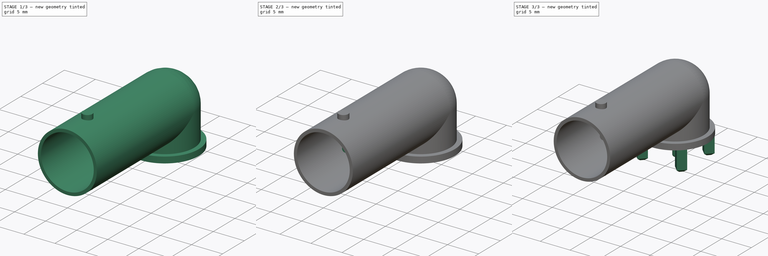
[diagram: build sequence overview — one tinted view per stage of 3, left to right]
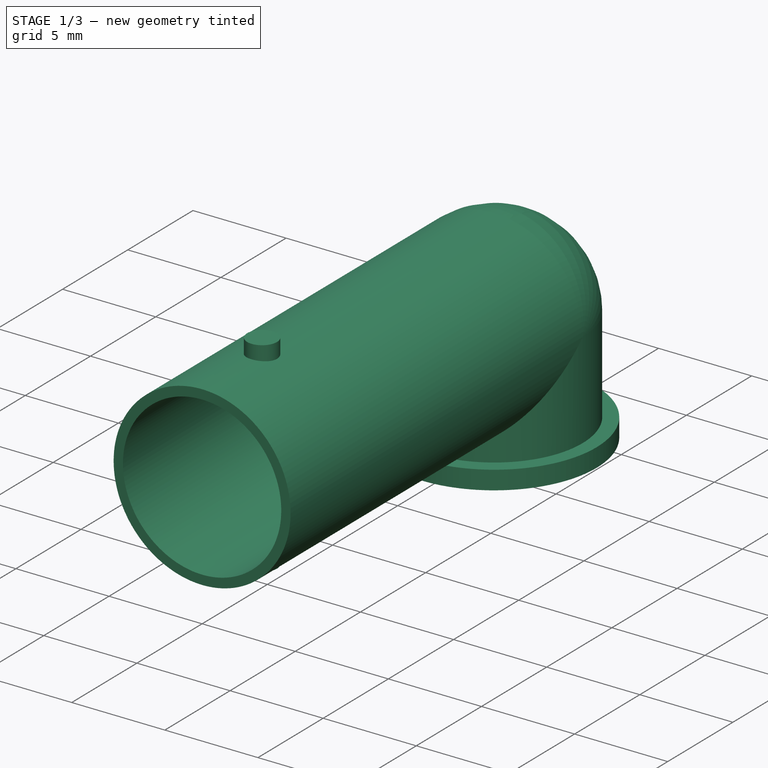
[diagram: stage 1 of 3 — iso view after this stage's code; geometry added in this stage tinted green]
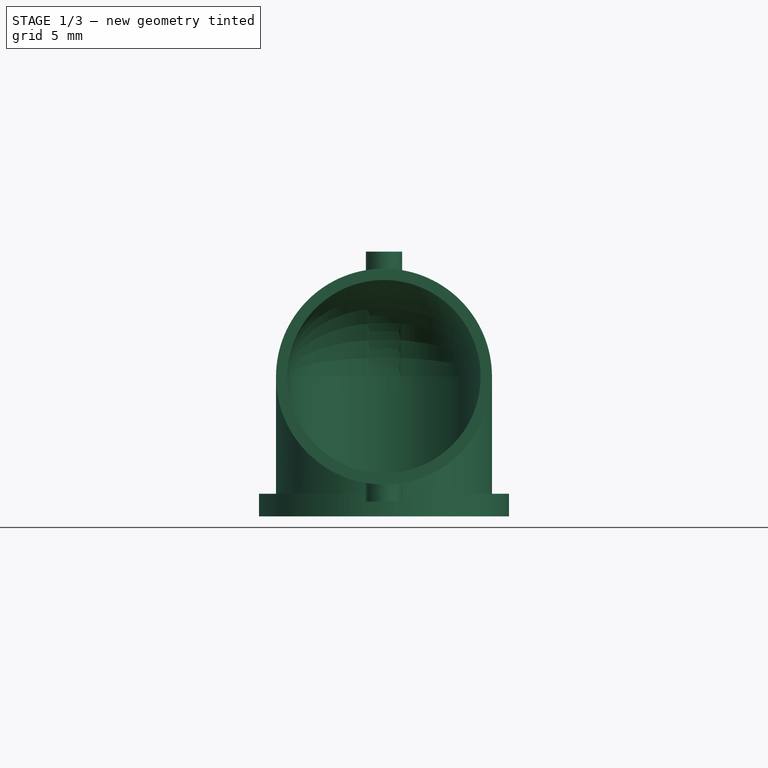
[diagram: stage 1 of 3 — front view after this stage's code; geometry added in this stage tinted green]
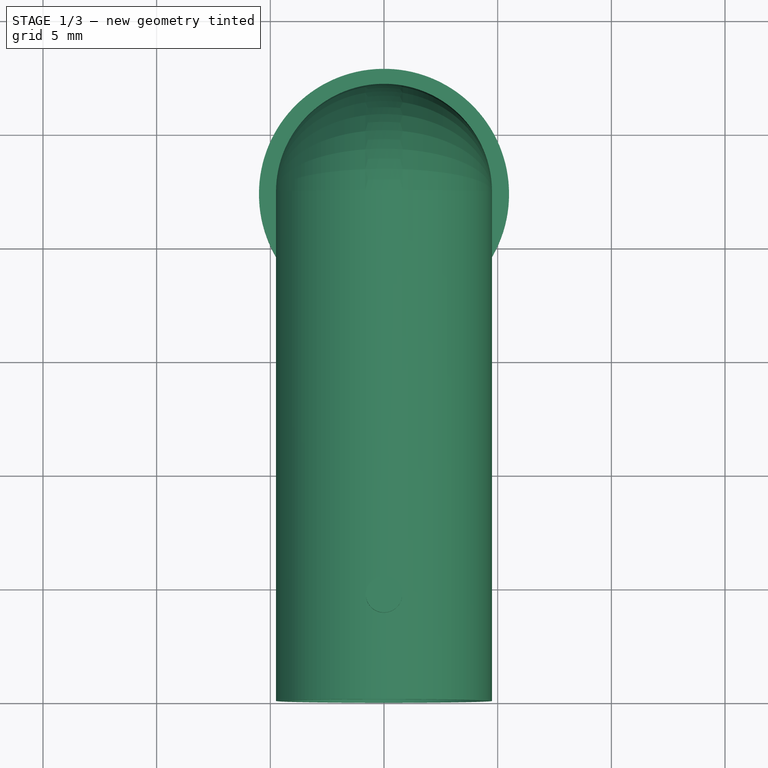
[diagram: stage 1 of 3 — top view after this stage's code; geometry added in this stage tinted green]
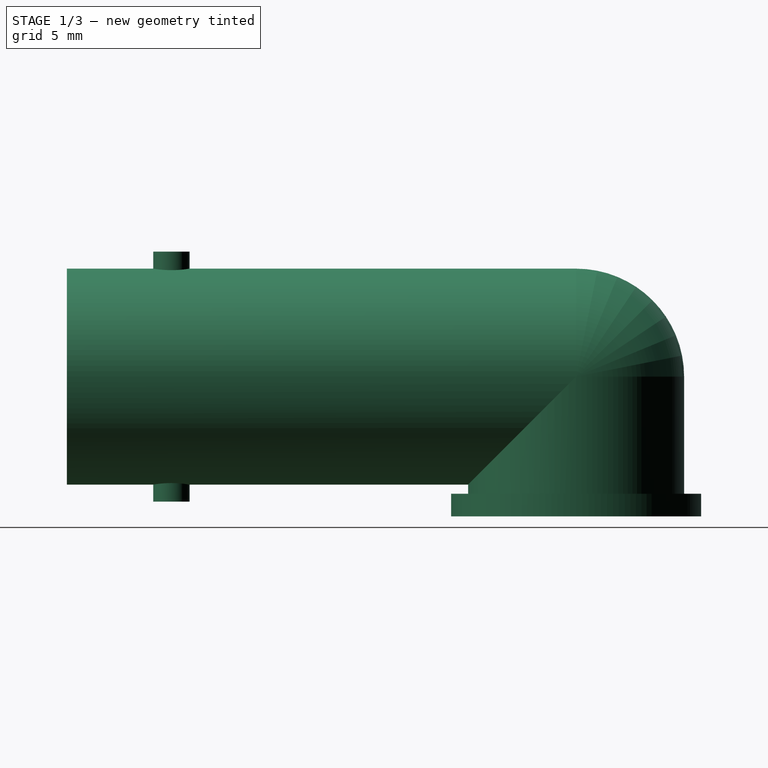
[diagram: stage 1 of 3 — right view after this stage's code; geometry added in this stage tinted green]
FCSTD DOCUMENT  (FreeCAD 1.0R39319 (Git))
Label: DOSIN_801_0051
License: All rights reserved
LicenseURL: https://en.wikipedia.org/wiki/All_rights_reserved
objects: Sketcher::SketchObject×7, PartDesign::Pad×4, PartDesign::Plane×1, PartDesign::AdditivePipe×1, PartDesign::Revolution×1, PartDesign::Fillet×1, PartDesign::Chamfer×1, PartDesign::Body×1, Part::Feature×1
note: 41 computed .brp shape members not serialized (recipe doc carries the construction recipe); baked Part::Feature solids carry a one-line shape summary decoded from their .brp

FEATURE [Sketcher::SketchObject] Sketch
  ArcFitTolerance = 1e-06
  AttachmentSupport = -> [XZ_Plane]
  FullyConstrained = true
  MakeInternals = false
  MapMode = 5
  Placement = pos=(0,0,0) rot=(1,0,0;1.5708rad)
  sketch-geometry (4):
    g0: LineSegment [constr] StartX=0 StartY=0 StartZ=0 EndX=0 EndY=6.15 EndZ=0
    g1: Circle CenterX=0 CenterY=6.15 CenterZ=0 NormalX=0 NormalY=0 NormalZ=1 AngleXU=0 Radius=4.75
    g2: Circle CenterX=0 CenterY=6.15 CenterZ=0 NormalX=0 NormalY=0 NormalZ=1 AngleXU=0 Radius=4.25
    g3: GeomPoint X=0 Y=6.15 Z=0
  constraints (8):
    c: Coincident(g0,g-1)
    c: PointOnObject(g0,g-2)
    c: DistanceY(g0,g0) = 6.15
    c: Diameter(g1) = 9.5
    c: Coincident(g1,g0)
    c: Diameter(g2) = 8.5
    c: Coincident(g2,g1)
    c: Coincident(g3,g0)
FEATURE [PartDesign::Plane] DatumPlane
  AttachmentOffset = pos=(0,0,0) rot=(0,1,0;1.5708rad)
  AttachmentSupport = -> [Sketch]
  Length = 63.181
  MapMode = 2
  Placement = pos=(0,0,0) rot=(0.57735,0.57735,0.57735;2.0944rad)
  ResizeMode = 0
  Width = 60.2855
FEATURE [Sketcher::SketchObject] Sketch001
  ArcFitTolerance = 1e-06
  AttachmentSupport = -> [DatumPlane]
  ExternalGeometry = -> [Sketch]
  FullyConstrained = true
  MakeInternals = false
  MapMode = 5
  Placement = pos=(0,0,0) rot=(0.57735,0.57735,0.57735;2.0944rad)
  sketch-geometry (3):
    g0: LineSegment StartX=1.4e-15 StartY=6.15 StartZ=0 EndX=22.4 EndY=6.15 EndZ=0
    g1: LineSegment StartX=22.4 StartY=6.15 StartZ=0 EndX=22.4 EndY=0 EndZ=0
    g2: GeomPoint [constr] X=1.4e-15 Y=6.15 Z=0
  constraints (7):
    c: Horizontal(g0)
    c: DistanceX(g0,g0) = 22.4
    c: Vertical(g0,g1)
    c: Coincident(g1,g0)
    c: Symmetric(g-3,g-3,g2)
    c: Coincident(g2,g0)
    c: PointOnObject(g1,g-1)
FEATURE [PartDesign::AdditivePipe] AdditivePipe
  AuxilleryCurvelinear = true
  AuxillerySpineTangent = false
  Binormal = (-1,0,0)
  Mode = 2
  Placement = pos=(0,0,0) rot=(1,0,0;1.5708rad)
  Profile = -> Sketch
  Refine = true
  Spine = -> Sketch001
  SpineTangent = false
  Suppressed = false
  Transformation = 0
  Transition = 2
FEATURE [Sketcher::SketchObject] Sketch002
  ArcFitTolerance = 1e-06
  AttachmentSupport = -> [AdditivePipe]
  ExternalGeometry = -> [AdditivePipe]
  FullyConstrained = true
  MakeInternals = false
  MapMode = 5
  Placement = pos=(0,0,4.6e-15) rot=(1,0,0;3.14159rad)
  sketch-geometry (1):
    g0: Circle CenterX=0 CenterY=-22.4 CenterZ=0 NormalX=0 NormalY=0 NormalZ=1 AngleXU=0 Radius=5.5
  constraints (2):
    c: Coincident(g0,g-3)
    c: Diameter(g0) = 11
FEATURE [PartDesign::Pad] Pad
  BaseFeature = -> AdditivePipe
  Direction = (0,0,-1)
  Length = 1
  Length2 = 10
  Placement = pos=(0,0,0) rot=(1,0,0;1.5708rad)
  Profile = -> Sketch002
  ReferenceAxis = -> Sketch002 [N_Axis]
  Refine = true
  Reversed = true
  Suppressed = false
  Type = 0
FEATURE [Sketcher::SketchObject] Sketch003
  ArcFitTolerance = 1e-06
  AttachmentSupport = -> [DatumPlane]
  ExternalGeometry = -> [AdditivePipe]
  FullyConstrained = true
  MakeInternals = false
  MapMode = 5
  Placement = pos=(0,0,0) rot=(0.57735,0.57735,0.57735;2.0944rad)
  sketch-geometry (12):
    g0: LineSegment StartX=3.8 StartY=11.65 StartZ=0 EndX=3.8 EndY=10.65 EndZ=0
    g1: LineSegment StartX=3.8 StartY=10.65 StartZ=0 EndX=4.6 EndY=10.65 EndZ=0
    g2: LineSegment StartX=4.6 StartY=10.65 StartZ=0 EndX=4.6 EndY=11.65 EndZ=0
    g3: LineSegment StartX=4.6 StartY=11.65 StartZ=0 EndX=3.8 EndY=11.65 EndZ=0
    g4: GeomPoint [constr] X=1.4e-15 Y=6.15 Z=0
    g5: LineSegment StartX=3.8 StartY=1.65 StartZ=0 EndX=3.8 EndY=0.65 EndZ=0
    g6: LineSegment StartX=3.8 StartY=0.65 StartZ=0 EndX=4.6 EndY=0.65 EndZ=0
    g7: LineSegment StartX=4.6 StartY=0.65 StartZ=0 EndX=4.6 EndY=1.65 EndZ=0
    g8: LineSegment StartX=4.6 StartY=1.65 StartZ=0 EndX=3.8 EndY=1.65 EndZ=0
    g9: LineSegment [constr] StartX=4.6 StartY=10.65 StartZ=0 EndX=4.6 EndY=1.65 EndZ=0
    g10: GeomPoint [constr] X=4.6 Y=6.15 Z=0
    g11: GeomPoint [constr] X=3.8 Y=10.9 Z=0
  constraints (30):
    c: Coincident(g0,g1)
    c: Coincident(g1,g2)
    c: Coincident(g2,g3)
    c: Coincident(g3,g0)
    c: Vertical(g0)
    c: Vertical(g2)
    c: Horizontal(g1)
    c: Horizontal(g3)
    c: Distance(g0,g2) = 0.8
    c: Symmetric(g-3,g-3,g4)
    c: Coincident(g5,g6)
    c: Coincident(g6,g7)
    c: Coincident(g7,g8)
    c: Coincident(g8,g5)
    c: Vertical(g5)
    c: Vertical(g7)
    c: Horizontal(g6)
    c: Horizontal(g8)
    c: Equal(g8,g3)
    c: Equal(g2,g7)
    c: Coincident(g9,g1)
    c: Coincident(g9,g7)
    c: Vertical(g9)
    c: Symmetric(g9,g9,g10)
    c: Horizontal(g4,g10)
    c: DistanceY(g7,g1) = 9
    c: Distance(g10,g-3) = 4.6
    c: PointOnObject(g11,g0)
    c: Horizontal(g-3,g11)
    c: DistanceY(g11,g0) = 0.75
FEATURE [PartDesign::Revolution] Revolution
  Angle = 360
  Angle2 = 60
  Axis = (0,0,-9)
  Base = (0,4.6,10.65)
  BaseFeature = -> Pad
  Placement = pos=(0,0,0) rot=(1,0,0;1.5708rad)
  Profile = -> Sketch003
  ReferenceAxis = -> Sketch003 [Axis]
  Refine = true
  Reversed = true
  Suppressed = false
  Type = 0
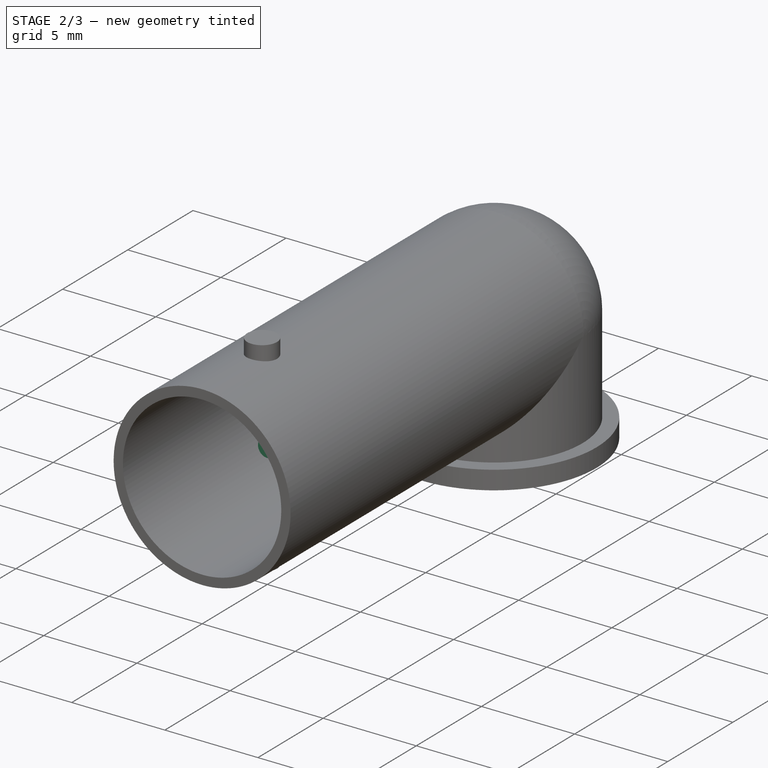
[diagram: stage 2 of 3 — iso view after this stage's code; geometry added in this stage tinted green]
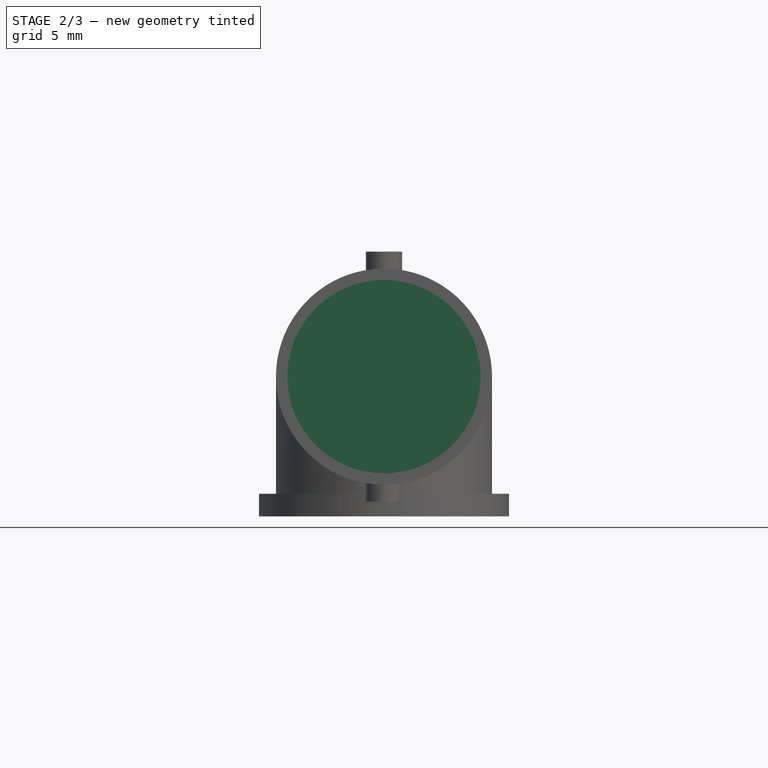
[diagram: stage 2 of 3 — front view after this stage's code; geometry added in this stage tinted green]
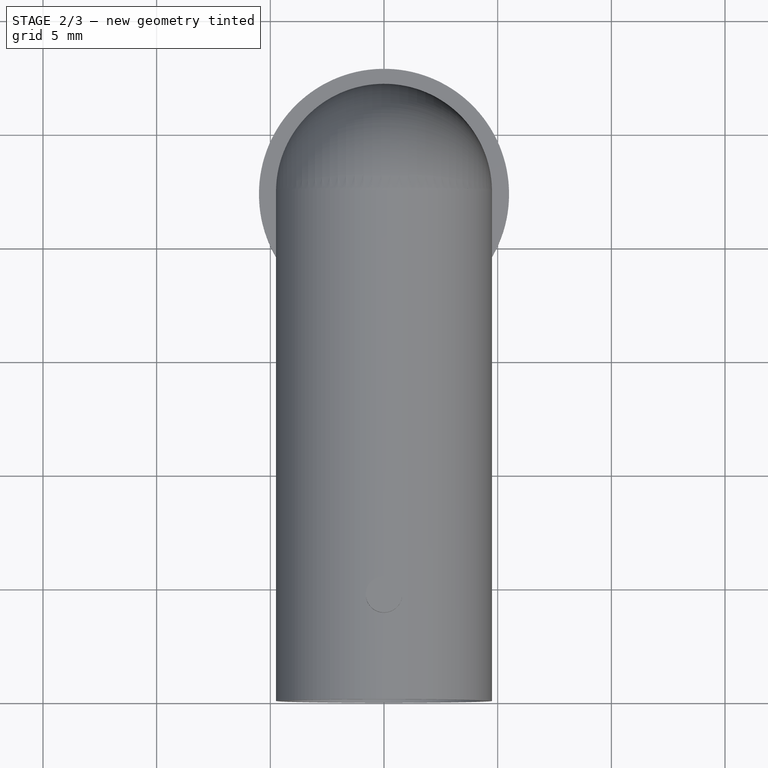
[diagram: stage 2 of 3 — top view after this stage's code; geometry added in this stage tinted green]
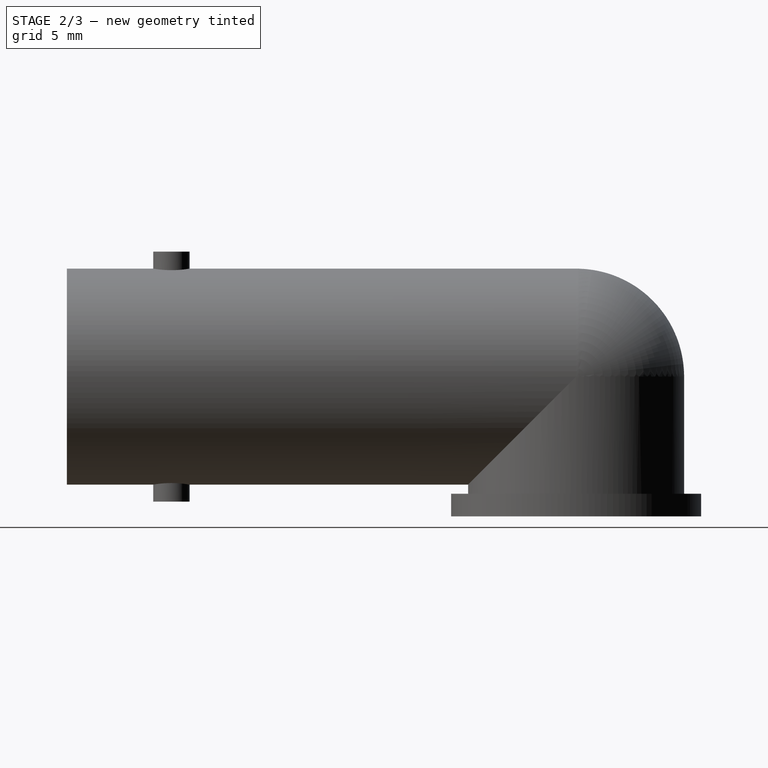
[diagram: stage 2 of 3 — right view after this stage's code; geometry added in this stage tinted green]
FEATURE [Sketcher::SketchObject] Sketch004
  ArcFitTolerance = 1e-06
  AttachmentOffset = pos=(0,0,-5) rot=(0,0,1;0rad)
  AttachmentSupport = -> [Revolution]
  ExternalGeometry = -> [Revolution]
  FullyConstrained = true
  MakeInternals = false
  MapMode = 5
  Placement = pos=(0,5,-1.1e-15) rot=(1,0,0;1.5708rad)
  sketch-geometry (1):
    g0: Circle CenterX=0 CenterY=6.15 CenterZ=0 NormalX=0 NormalY=0 NormalZ=1 AngleXU=0 Radius=0.5
  constraints (2):
    c: Coincident(g0,g-3)
    c: Diameter(g0) = 1
FEATURE [Sketcher::SketchObject] Sketch005
  ArcFitTolerance = 1e-06
  FullyConstrained = true
  MakeInternals = false
  MapMode = 5
  Placement = pos=(0,0,-4e-16) rot=(1,0,0;3.14159rad)
  sketch-geometry (30):
    g0: LineSegment StartX=3.3 StartY=-24.6747 StartZ=0 EndX=4.3253 EndY=-25.7 EndZ=0
    g1: LineSegment StartX=4.3253 StartY=-25.7 StartZ=0 EndX=3.3 EndY=-26.7253 EndZ=0
    g2: LineSegment StartX=3.3 StartY=-26.7253 StartZ=0 EndX=2.2747 EndY=-25.7 EndZ=0
    g3: LineSegment StartX=3.3 StartY=-24.6747 StartZ=0 EndX=2.2747 EndY=-25.7 EndZ=0
    g4: LineSegment [constr] StartX=3.3 StartY=-24.6747 StartZ=0 EndX=3.3 EndY=-26.7253 EndZ=0
    g5: GeomPoint [constr] X=3.3 Y=-25.7 Z=0
    g6: LineSegment StartX=-3.3 StartY=-18.0747 StartZ=0 EndX=-2.2747 EndY=-19.1 EndZ=0
    g7: LineSegment StartX=-2.2747 StartY=-19.1 StartZ=0 EndX=-3.3 EndY=-20.1253 EndZ=0
    g8: LineSegment StartX=-3.3 StartY=-20.1253 StartZ=0 EndX=-4.3253 EndY=-19.1 EndZ=0
    g9: LineSegment StartX=-3.3 StartY=-18.0747 StartZ=0 EndX=-4.3253 EndY=-19.1 EndZ=0
    g10: LineSegment [constr] StartX=-3.3 StartY=-18.0747 StartZ=0 EndX=-3.3 EndY=-20.1253 EndZ=0
    g11: GeomPoint [constr] X=-3.3 Y=-19.1 Z=0
    g12: LineSegment StartX=3.3 StartY=-18.0747 StartZ=0 EndX=4.3253 EndY=-19.1 EndZ=0
    g13: LineSegment StartX=4.3253 StartY=-19.1 StartZ=0 EndX=3.3 EndY=-20.1253 EndZ=0
    g14: LineSegment StartX=3.3 StartY=-20.1253 StartZ=0 EndX=2.2747 EndY=-19.1 EndZ=0
    g15: LineSegment StartX=3.3 StartY=-18.0747 StartZ=0 EndX=2.2747 EndY=-19.1 EndZ=0
    g16: LineSegment [constr] StartX=3.3 StartY=-18.0747 StartZ=0 EndX=3.3 EndY=-20.1253 EndZ=0
    g17: GeomPoint [constr] X=3.3 Y=-19.1 Z=0
    g18: LineSegment StartX=-3.3 StartY=-24.6747 StartZ=0 EndX=-2.2747 EndY=-25.7 EndZ=0
    g19: LineSegment StartX=-2.2747 StartY=-25.7 StartZ=0 EndX=-3.3 EndY=-26.7253 EndZ=0
    g20: LineSegment StartX=-3.3 StartY=-26.7253 StartZ=0 EndX=-4.3253 EndY=-25.7 EndZ=0
    g21: LineSegment StartX=-3.3 StartY=-24.6747 StartZ=0 EndX=-4.3253 EndY=-25.7 EndZ=0
    g22: LineSegment [constr] StartX=-3.3 StartY=-24.6747 StartZ=0 EndX=-3.3 EndY=-26.7253 EndZ=0
    g23: GeomPoint [constr] X=-3.3 Y=-25.7 Z=0
    g24: LineSegment [constr] StartX=-3.3 StartY=-19.1 StartZ=0 EndX=3.3 EndY=-19.1 EndZ=0
    g25: GeomPoint [constr] X=0 Y=-19.1 Z=0
    g26: LineSegment [constr] StartX=-3.3 StartY=-25.7 StartZ=0 EndX=3.3 EndY=-25.7 EndZ=0
    g27: LineSegment [constr] StartX=-3.3 StartY=-19.1 StartZ=0 EndX=-3.3 EndY=-25.7 EndZ=0
    g28: GeomPoint [constr] X=-3.3 Y=-22.4 Z=0
    g29: Circle CenterX=0 CenterY=-22.4 CenterZ=0 NormalX=0 NormalY=0 NormalZ=1 AngleXU=0 Radius=0.4
  constraints (70):
    c: Distance(g0) = 1.45
    c: Angle(g-1,g0) = -0.785398
    c: Coincident(g1,g0)
    c: Equal(g0,g1)
    c: Perpendicular(g0,g1)
    c: Coincident(g2,g1)
    c: Perpendicular(g1,g2)
    c: Equal(g1,g2)
    c: Coincident(g3,g0)
    c: Coincident(g3,g2)
    c: Coincident(g4,g0)
    c: Coincident(g4,g1)
    c: Symmetric(g4,g4,g5)
    c: Distance(g6) = 1.45
    c: Angle(g-1,g6) = -0.785398
    c: Coincident(g7,g6)
    c: Equal(g6,g7)
    c: Perpendicular(g6,g7)
    c: Coincident(g8,g7)
    c: Perpendicular(g7,g8)
    c: Equal(g7,g8)
    c: Coincident(g9,g6)
    c: Coincident(g9,g8)
    c: Coincident(g10,g6)
    c: Coincident(g10,g7)
    c: Symmetric(g10,g10,g11)
    c: Distance(g12) = 1.45
    c: Angle(g-1,g12) = -0.785398
    c: Coincident(g13,g12)
    c: Equal(g12,g13)
    c: Perpendicular(g12,g13)
    c: Coincident(g14,g13)
    c: Perpendicular(g13,g14)
    c: Equal(g13,g14)
    c: Coincident(g15,g12)
    c: Coincident(g15,g14)
    c: Coincident(g16,g12)
    c: Coincident(g16,g13)
    c: Symmetric(g16,g16,g17)
    c: Distance(g18) = 1.45
    c: Angle(g-1,g18) = -0.785398
    c: Coincident(g19,g18)
    c: Equal(g18,g19)
    c: Perpendicular(g18,g19)
    c: Coincident(g20,g19)
    c: Perpendicular(g19,g20)
    c: Equal(g19,g20)
    c: Coincident(g21,g18)
    c: Coincident(g21,g20)
    c: Coincident(g22,g18)
    c: Coincident(g22,g19)
    c: Symmetric(g22,g22,g23)
    c: Coincident(g24,g11)
    c: Coincident(g24,g17)
    c: Horizontal(g24)
    c: Distance(g17,g10) = 6.6
    c: Symmetric(g24,g24,g25)
    c: Vertical(g25,g-3)
    c: Coincident(g26,g23)
    c: Coincident(g26,g5)
    c: Horizontal(g5,g23)
    c: Equal(g24,g26)
    c: Coincident(g27,g11)
    c: Coincident(g27,g23)
    c: Vertical(g27)
    c: Equal(g24,g27)
    c: Symmetric(g27,g27,g28)
    c: Horizontal(g28,g-3)
    c: Diameter(g29) = 0.8
    c: Coincident(g29,g-3)
FEATURE [Sketcher::SketchObject] Sketch006
  ArcFitTolerance = 1e-06
  AttachmentOffset = pos=(0,0,-15) rot=(0,0,1;0rad)
  ExternalGeometry = -> [Sketch]
  FullyConstrained = true
  MakeInternals = false
  MapMode = 5
  Placement = pos=(0,15,-3.3e-15) rot=(1,0,0;1.5708rad)
  sketch-geometry (1):
    g0: Circle CenterX=0 CenterY=6.15 CenterZ=0 NormalX=0 NormalY=0 NormalZ=1 AngleXU=0 Radius=4.75
  constraints (2):
    c: Coincident(g0,g-3)
    c: Equal(g0,g-3)
FEATURE [PartDesign::Pad] Pad003
  BaseFeature = -> Revolution
  Direction = (0,-1,2e-16)
  Length = 7.5
  Length2 = 10
  Placement = pos=(0,0,0) rot=(1,0,0;1.5708rad)
  Profile = -> Sketch006
  ReferenceAxis = -> Sketch006 [N_Axis]
  Refine = true
  Reversed = true
  Suppressed = false
  Type = 0
FEATURE [PartDesign::Pad] Pad004
  BaseFeature = -> Pad003
  Direction = (0,-1,2e-16)
  Length = 10
  Length2 = 10
  Placement = pos=(0,0,0) rot=(1,0,0;1.5708rad)
  Profile = -> Sketch004
  ReferenceAxis = -> Sketch004 [N_Axis]
  Refine = true
  Reversed = true
  Suppressed = false
  Type = 0
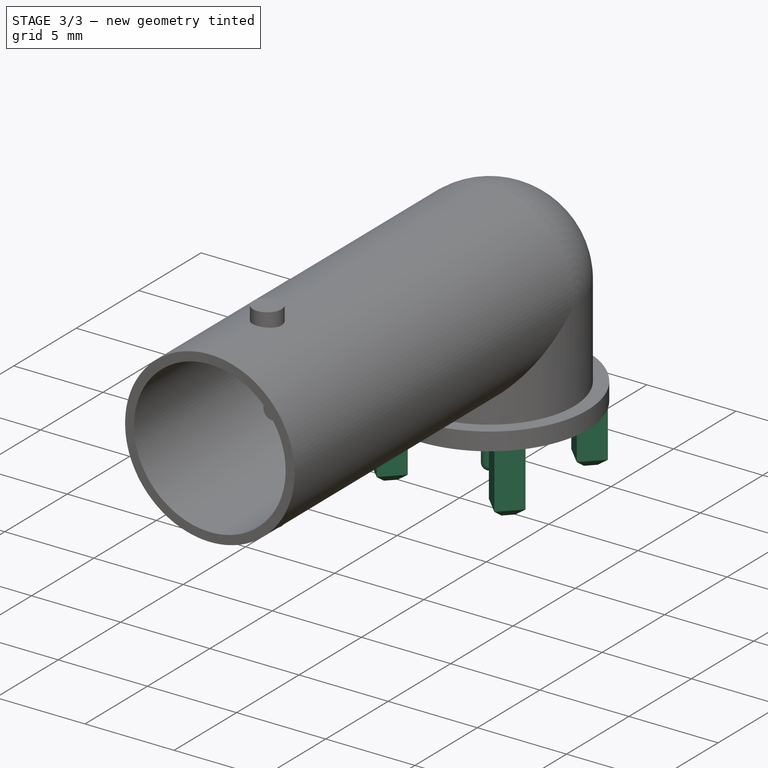
[diagram: stage 3 of 3 — iso view after this stage's code; geometry added in this stage tinted green]
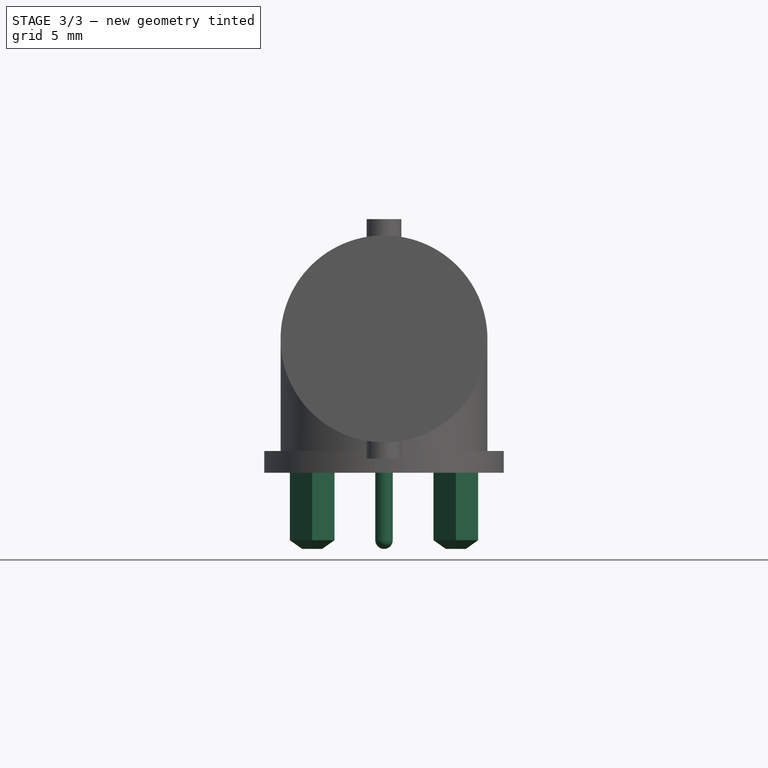
[diagram: stage 3 of 3 — front view after this stage's code; geometry added in this stage tinted green]
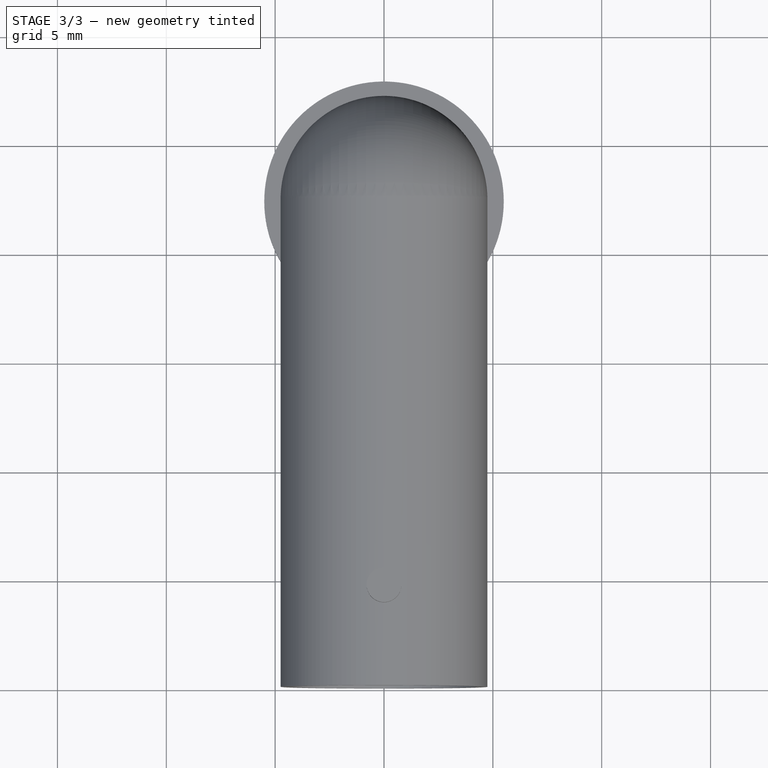
[diagram: stage 3 of 3 — top view after this stage's code; geometry added in this stage tinted green]
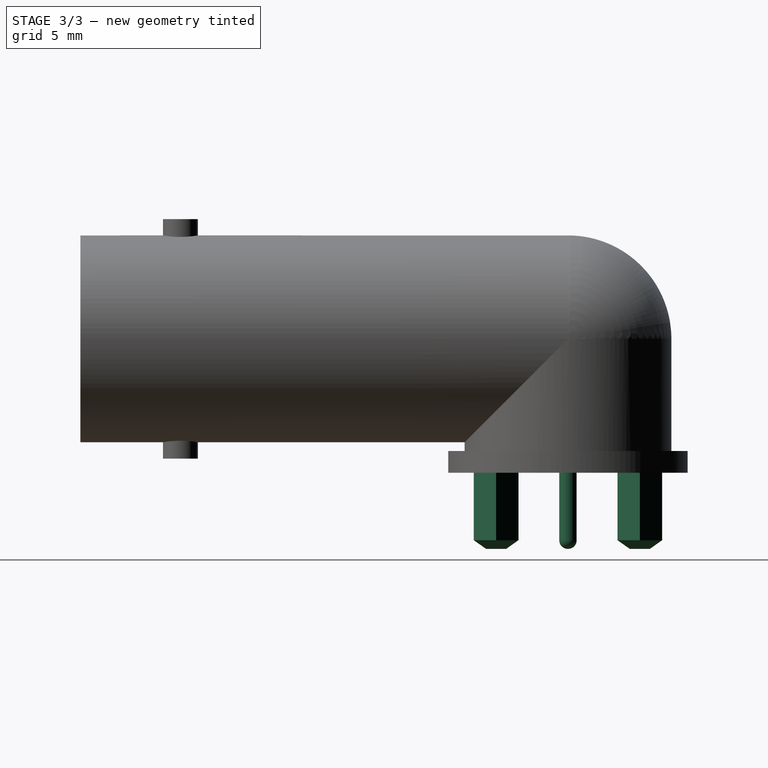
[diagram: stage 3 of 3 — right view after this stage's code; geometry added in this stage tinted green]
FEATURE [PartDesign::Pad] Pad005
  BaseFeature = -> Pad004
  Direction = (0,0,-1)
  Length = 3.5
  Length2 = 10
  Placement = pos=(0,0,0) rot=(1,0,0;1.5708rad)
  Profile = -> Sketch005
  ReferenceAxis = -> Sketch005 [N_Axis]
  Refine = true
  Suppressed = false
  Type = 0
FEATURE [PartDesign::Fillet] Fillet
  Base = -> Pad005 [Edge59]
  BaseFeature = -> Pad005
  Placement = pos=(0,0,0) rot=(1,0,0;1.5708rad)
  Radius = 0.4
  Refine = true
  SupportTransform = false
  Suppressed = false
  UseAllEdges = false
FEATURE [PartDesign::Chamfer] Chamfer
  Angle = 45
  Base = -> Fillet [Face24,Face22,Face23,Face25]
  BaseFeature = -> Fillet
  ChamferType = 0
  FlipDirection = false
  Placement = pos=(0,0,0) rot=(1,0,0;1.5708rad)
  Refine = true
  Size = 0.4
  Size2 = 1
  SupportTransform = false
  Suppressed = false
  UseAllEdges = false
FEATURE [PartDesign::Body] Body  label="DOSIN_801_0051"
  AllowCompound = false
  Group = -> [Sketch,DatumPlane,Sketch001,AdditivePipe,Sketch002,Pad,Sketch003,Revolution,Sketch006,Pad003,Sketch004,Pad004,Sketch005,Pad005,Fillet,Chamfer]
  Origin = -> Origin
  Tip = -> Chamfer
FEATURE [Part::Feature] Body001  label="DOSIN_801_0051_Model"
  shape: bbox 11 x 27.9 x 15.15 mm, 62 faces (baked)
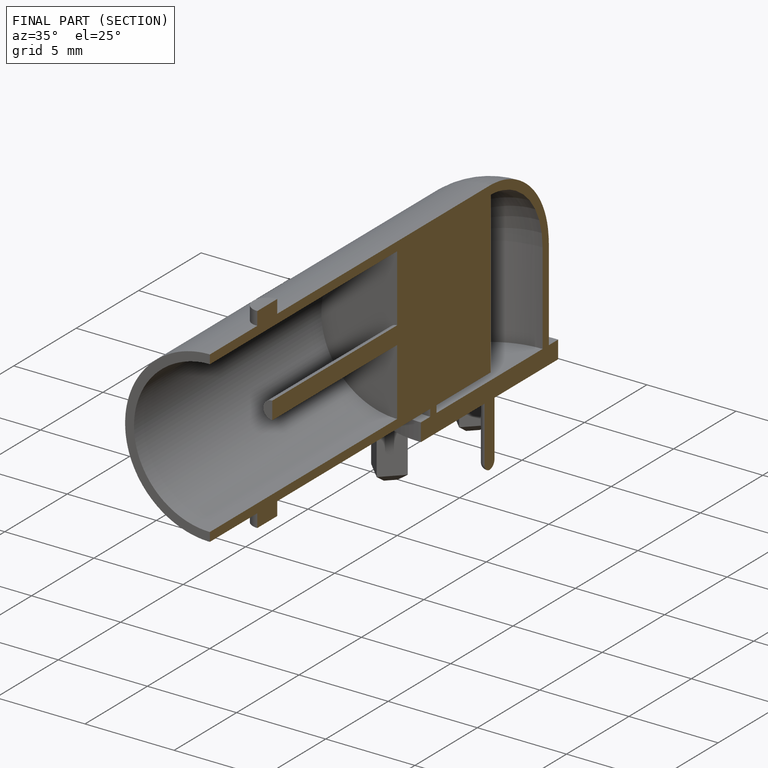
[diagram: finished part — half-section view (interior)]
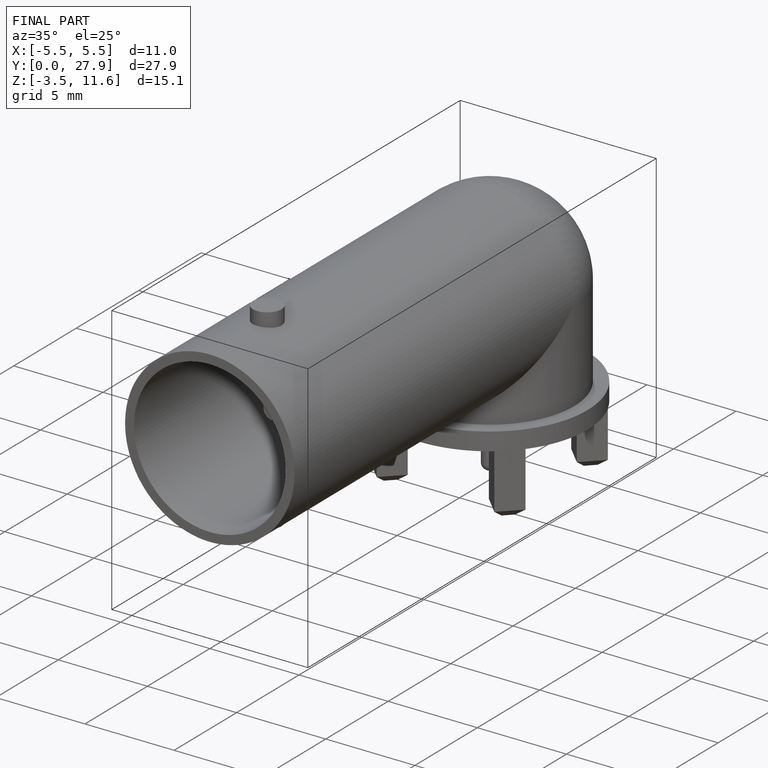
[diagram: finished part — iso view with bounding-box wireframe]
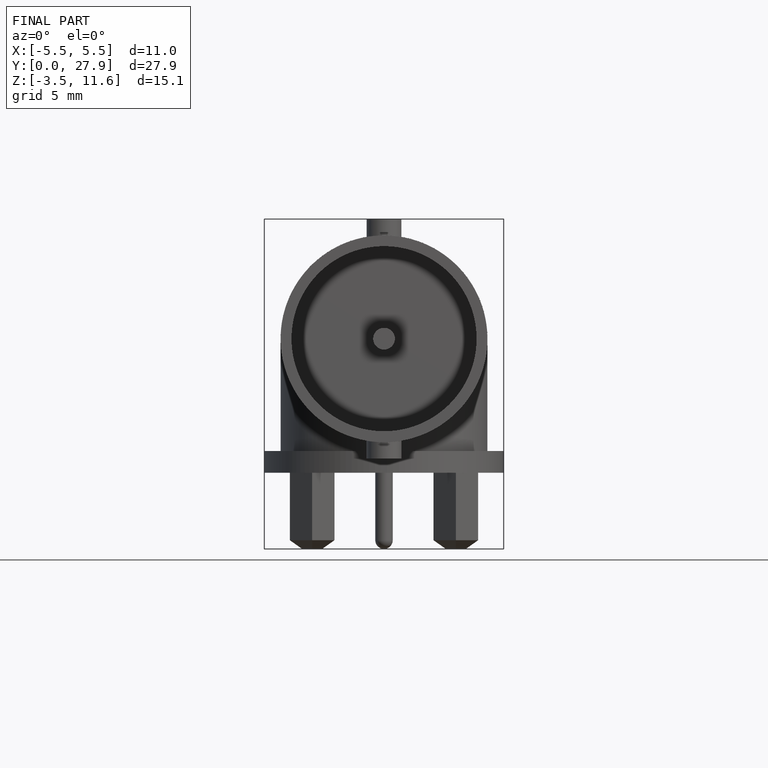
[diagram: finished part — front view with bounding-box wireframe]
